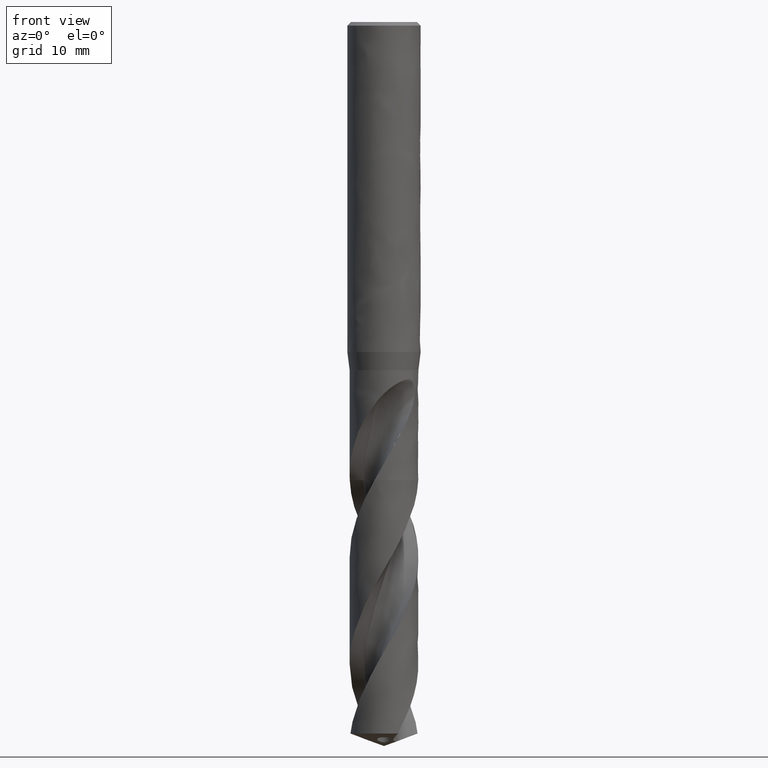
[diagram: clean part render]
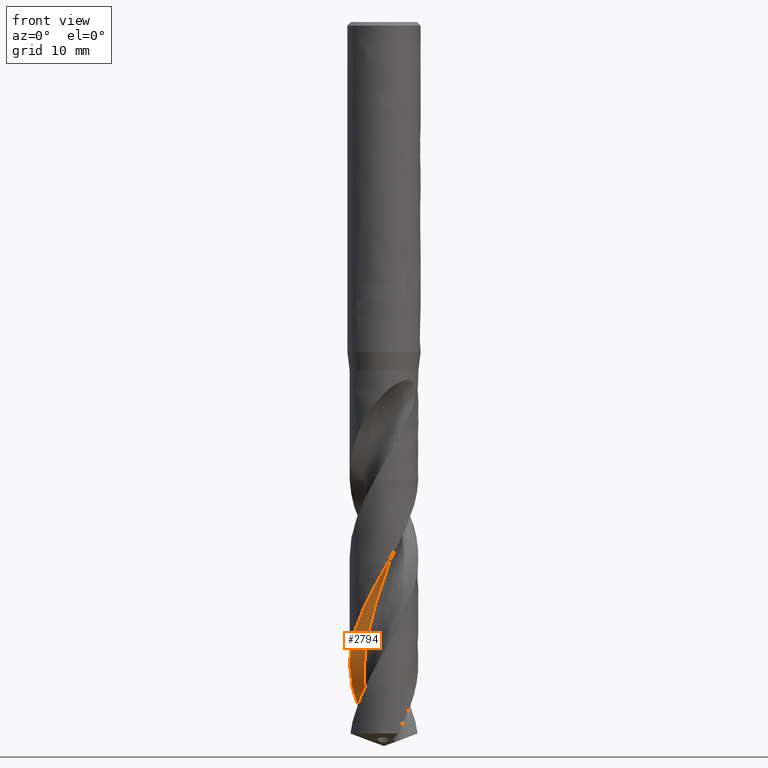
[diagram: same view with one face highlighted and labeled with its STEP entity id]
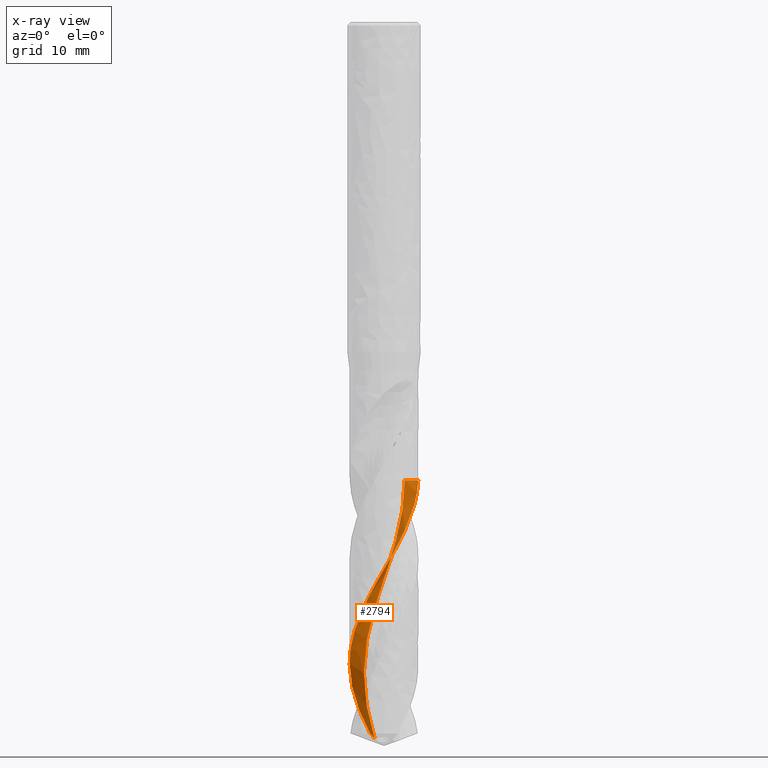
[diagram: x-ray of the same camera — body ghosted, the highlighted face saturated]
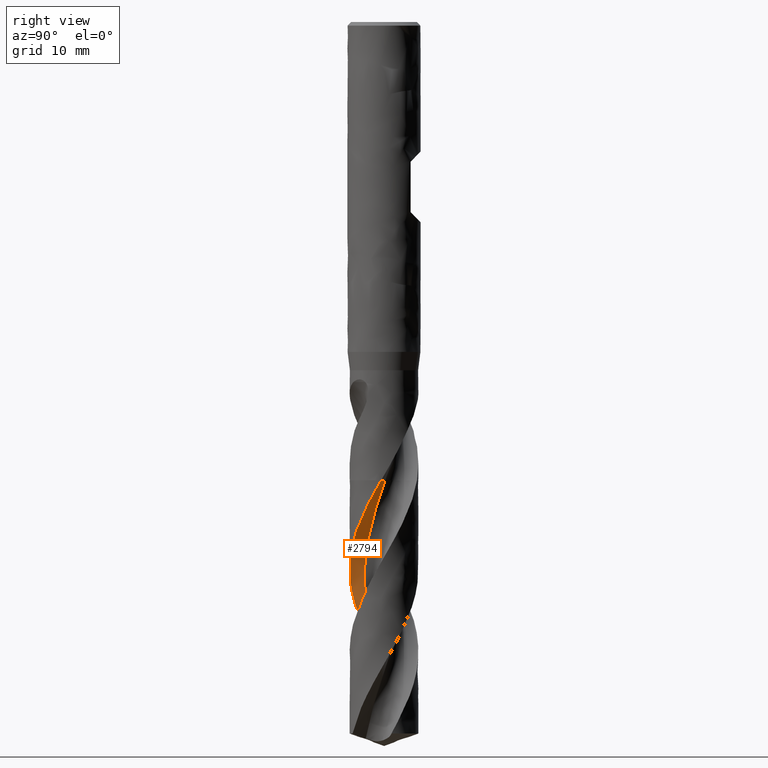
[diagram: same view with one face highlighted and labeled with its STEP entity id]
A machine part, front view. The second image highlights one B-rep face of the part: STEP entity #2794.
The next image is the same camera in x-ray: the body ghosted, the highlighted face saturated — about 0% of this face is hidden behind the body in this view.
A second angle (right view) of the same face is appended — the face is thin or edge-on in the first view.
In plain terms, the highlighted face is a freeform B-spline surface patch.
Its self-contained STEP definition (entity closure, byte-faithful):
#1783 = VERTEX_POINT('', #1784);
#1784 = CARTESIAN_POINT('', (2.24340713383503, 0.132062946207689, -50.));
#1952 = VERTEX_POINT('', #1953);
#1953 = CARTESIAN_POINT('', (3.73763323144449, -0.304298910944184, -50.));
#1960 = EDGE_CURVE('', #1952, #1783, #1961, .T.);
#1961 = LINE('', #1962, #1963);
#1962 = CARTESIAN_POINT('', (3.73763323144449, -0.304298910944184, -50.));
#1963 = VECTOR('', #1964, 1.55663846192821);
#1964 = DIRECTION('', (-1.49422609760946, 0.436361857151871, 7.105427357601E-15));
#2353 = EDGE_CURVE('', #2354, #1783, #2356, .T.);
#2354 = VERTEX_POINT('', #2355);
#2355 = CARTESIAN_POINT('', (-1.02703114820642, 1.99648029026866, -78.1828299584324));
#2356 = (
   BOUNDED_CURVE ()
   B_SPLINE_CURVE (3, (#2357, #2358, #2359, #2360, #2361, #2362, #2363, #2364, #2365, #2366, #2367, #2368, #2369, #2370, #2371, #2372, #2373, #2374, #2375, #2376, #2377, #2378, #2379, #2380, #2381, #2382, #2383, #2384, #2385, #2386, #2387, #2388, #2389, #2390, #2391, #2392, #2393, #2394, #2395, #2396, #2397, #2398, #2399, #2400, #2401), .UNSPECIFIED., .F., .U.)
   B_SPLINE_CURVE_WITH_KNOTS ((4, 1, 1, 1, 1, 1, 1, 1, 1, 1, 1, 1, 1, 1, 1, 1, 1, 1, 1, 1, 1, 1, 1, 1, 1, 1, 1, 1, 1, 1, 1, 1, 1, 1, 1, 1, 1, 1, 1, 1, 1, 1, 4), (0.867170041567587, 1.38103448275862, 2.07155172413793, 2.76206896551724, 3.45258620689655, 4.14310344827586, 4.83362068965517, 5.52413793103448, 6.21465517241379, 6.9051724137931, 7.59568965517241, 8.28620689655172, 8.97672413793103, 9.66724137931034, 10.3577586206897, 11.048275862069, 11.7387931034483, 12.4293103448276, 13.1198275862069, 13.8103448275862, 14.5008620689655, 15.1913793103448, 15.8818965517241, 16.5724137931034, 17.2629310344828, 17.9534482758621, 18.6439655172414, 19.3344827586207, 20.025, 20.7155172413793, 21.4060344827586, 22.0965517241379, 22.7870689655172, 23.4775862068965, 24.1681034482759, 24.8586206896552, 25.5491379310345, 26.2396551724138, 26.9301724137931, 27.6206896551724, 28.3112068965517, 29.001724137931, 29.05), .UNSPECIFIED.)
   CURVE ()
   GEOMETRIC_REPRESENTATION_ITEM ()
   RATIONAL_B_SPLINE_CURVE ((1., 1., 1., 1., 1., 1., 1., 1., 1., 1., 1., 1., 1., 1., 1., 1., 1., 1., 1., 1., 1., 1., 1., 1., 1., 1., 1., 1., 1., 1., 1., 1., 1., 1., 1., 1., 1., 1., 1., 1., 1., 1., 1., 1., 1.))
   REPRESENTATION_ITEM ('')
);
#2357 = CARTESIAN_POINT('', (-1.02703114820642, 1.99648029026866, -78.1828299584324));
#2358 = CARTESIAN_POINT('', (-1.07848965040616, 1.96836087702373, -78.0115418113687));
#2359 = CARTESIAN_POINT('', (-1.1964286796969, 1.89785509170282, -77.610081250512));
#2360 = CARTESIAN_POINT('', (-1.37087113338733, 1.77075544983249, -76.9784482758621));
#2361 = CARTESIAN_POINT('', (-1.54568438640881, 1.61313507655464, -76.2879310344828));
#2362 = CARTESIAN_POINT('', (-1.70281453030014, 1.43861220968175, -75.5974137931035));
#2363 = CARTESIAN_POINT('', (-1.84066590102839, 1.24912758305519, -74.9068965517241));
#2364 = CARTESIAN_POINT('', (-1.95785043504788, 1.04676743439513, -74.2163793103448));
#2365 = CARTESIAN_POINT('', (-2.05320157460334, 0.833743044453602, -73.5258620689655));
#2366 = CARTESIAN_POINT('', (-2.12578479486478, 0.612367357628328, -72.8353448275862));
#2367 = CARTESIAN_POINT('', (-2.17490609682528, 0.385031210439933, -72.1448275862069));
#2368 = CARTESIAN_POINT('', (-2.20011801666078, 0.154178782817019, -71.4543103448276));
#2369 = CARTESIAN_POINT('', (-2.20122321086692, -0.0777173268882573, -70.7637931034483));
#2370 = CARTESIAN_POINT('', (-2.17827556858865, -0.30818120958417, -70.073275862069));
#2371 = CARTESIAN_POINT('', (-2.13157885988887, -0.534758686042927, -69.3827586206897));
#2372 = CARTESIAN_POINT('', (-2.06168294157, -0.755042047629636, -68.6922413793103));
#2373 = CARTESIAN_POINT('', (-1.96937756653384, -0.966694264268052, -68.001724137931));
#2374 = CARTESIAN_POINT('', (-1.85568386333134, -1.16747243370944, -67.3112068965517));
#2375 = CARTESIAN_POINT('', (-1.72184357338328, -1.35525025363402, -66.6206896551724));
#2376 = CARTESIAN_POINT('', (-1.56930615311135, -1.52803930774748, -65.9301724137931));
#2377 = CARTESIAN_POINT('', (-1.39971386704826, -1.68400896828713, -65.2396551724138));
#2378 = CARTESIAN_POINT('', (-1.21488501567918, -1.82150473025099, -64.5491379310345));
#2379 = CARTESIAN_POINT('', (-1.01679545819432, -1.9390648070692, -63.8586206896552));
#2380 = CARTESIAN_POINT('', (-0.807558605377878, -2.0354348332433, -63.1681034482759));
#2381 = CARTESIAN_POINT('', (-0.589404071410881, -2.10958053655732, -62.4775862068965));
#2382 = CARTESIAN_POINT('', (-0.364655185323537, -2.16069826068509, -61.7870689655172));
#2383 = CARTESIAN_POINT('', (-0.135705573105611, -2.18822323823809, -61.0965517241379));
#2384 = CARTESIAN_POINT('', (0.0950049700089198, -2.19183553437298, -60.4060344827586));
#2385 = CARTESIAN_POINT('', (0.325015090889185, -2.17146360185487, -59.7155172413793));
#2386 = CARTESIAN_POINT('', (0.551866742513842, -2.12728540978932, -59.025));
#2387 = CARTESIAN_POINT('', (0.773130066781506, -2.05972712995042, -58.3344827586207));
#2388 = CARTESIAN_POINT('', (0.98642806148484, -1.9694593865047, -57.6439655172414));
#2389 = CARTESIAN_POINT('', (1.18946079750736, -1.85739109706746, -56.9534482758621));
#2390 = CARTESIAN_POINT('', (1.38002895684431, -1.72466095423341, -56.2629310344828));
#2391 = CARTESIAN_POINT('', (1.55605646164173, -1.57262662065432, -55.5724137931035));
#2392 = CARTESIAN_POINT('', (1.71561199185178, -1.40285172292937, -54.8818965517241));
#2393 = CARTESIAN_POINT('', (1.85692912192952, -1.21709078320042, -54.1913793103448));
#2394 = CARTESIAN_POINT('', (1.97842510182255, -1.01727212315642, -53.5008620689655));
#2395 = CARTESIAN_POINT('', (2.07871726010882, -0.805479255957283, -52.8103448275862));
#2396 = CARTESIAN_POINT('', (2.15663997743982, -0.583929574409092, -52.1198275862069));
#2397 = CARTESIAN_POINT('', (2.21125043051747, -0.354955596692251, -51.4293103448276));
#2398 = CARTESIAN_POINT('', (2.24186642390268, -0.12097002357289, -50.7387931034483));
#2399 = CARTESIAN_POINT('', (2.24608048135879, 0.0421973907332666, -50.2623563218391));
#2400 = CARTESIAN_POINT('', (2.24358986292296, 0.12655102816396, -50.016091954023));
#2401 = CARTESIAN_POINT('', (2.24340713383503, 0.132062946207689, -50.));
#2794 = ADVANCED_FACE('', (#2795), #2992, .T.);
#2795 = FACE_OUTER_BOUND('', #2796, .T.);
#2796 = EDGE_LOOP('', (#2797, #2798, #2915, #2963, #2991));
#2797 = ORIENTED_EDGE('', *, *, #1960, .F.);
#2798 = ORIENTED_EDGE('', *, *, #2799, .T.);
#2799 = EDGE_CURVE('', #1952, #2800, #2802, .T.);
#2800 = VERTEX_POINT('', #2801);
#2801 = CARTESIAN_POINT('', (-3.75, 4.51867119545947E-15, -70.0455008514381));
#2802 = B_SPLINE_CURVE_WITH_KNOTS('', 3, (#2803, #2804, #2805, #2806, #2807, #2808, #2809, #2810, #2811, #2812, #2813, #2814, #2815, #2816, #2817, #2818, #2819, #2820, #2821, #2822, #2823, #2824, #2825, #2826, #2827, #2828, #2829, #2830, #2831, #2832, #2833, #2834, #2835, #2836, #2837, #2838, #2839, #2840, #2841, #2842, #2843, #2844, #2845, #2846, #2847, #2848, #2849, #2850, #2851, #2852, #2853, #2854, #2855, #2856, #2857, #2858, #2859, #2860, #2861, #2862, #2863, #2864, #2865, #2866, #2867, #2868, #2869, #2870, #2871, #2872, #2873, #2874, #2875, #2876, #2877, #2878, #2879, #2880, #2881, #2882, #2883, #2884, #2885, #2886, #2887, #2888, #2889, #2890, #2891, #2892, #2893, #2894, #2895, #2896, #2897, #2898, #2899, #2900, #2901, #2902, #2903, #2904, #2905, #2906, #2907, #2908, #2909, #2910, #2911, #2912, #2913, #2914), .UNSPECIFIED., .F., .U., (4, 3, 3, 3, 3, 3, 3, 3, 3, 3, 3, 3, 3, 3, 3, 3, 3, 3, 3, 3, 3, 3, 3, 3, 3, 3, 3, 3, 3, 3, 3, 3, 3, 3, 3, 3, 3, 4), (10.4026737499228, 10.54200901875, 11.2082670087831, 11.8743467610676, 12.5402460620507, 13.2059728916227, 13.8715309631774, 14.5369235824044, 15.2021534079656, 15.8672221500434, 16.5321311905167, 17.1968813263478, 17.8614726983511, 18.5259047567632, 19.1901762311277, 19.8542851146329, 20.5182288916063, 21.1820044199246, 21.6247385916339, 21.7123389487168, 22.378781996363, 23.0450360129661, 23.7111079058032, 24.3770036388237, 25.0427282249821, 25.7082857951378, 26.3736796484362, 27.0389122951097, 27.703985638427, 28.3689010479336, 29.033659267506, 29.6982604051175, 30.3627039124498, 31.0269885586209, 31.6911124866277, 32.3550732651226, 33.0188677695314, 33.4991235694789), .UNSPECIFIED.);
#2803 = CARTESIAN_POINT('', (3.73763323144449, -0.304298910944184, -50.));
#2804 = CARTESIAN_POINT('', (3.73575528108961, -0.327365341355166, -50.0402685912264));
#2805 = CARTESIAN_POINT('', (3.73366358150514, -0.350416552160913, -50.0805429648196));
#2806 = CARTESIAN_POINT('', (3.73135910630578, -0.373442391528522, -50.1208126365872));
#2807 = CARTESIAN_POINT('', (3.72033982147336, -0.483544805547674, -50.3133697026982));
#2808 = CARTESIAN_POINT('', (3.70444261289035, -0.593163053615004, -50.5059866000077));
#2809 = CARTESIAN_POINT('', (3.6837389297758, -0.701831530536383, -50.6985605067277));
#2810 = CARTESIAN_POINT('', (3.66304078532334, -0.810470936399759, -50.8910828959573));
#2811 = CARTESIAN_POINT('', (3.6375275808418, -0.918216381932822, -51.0836541253384));
#2812 = CARTESIAN_POINT('', (3.60731411037971, -1.02459011758643, -51.2761835480523));
#2813 = CARTESIAN_POINT('', (3.57710882521382, -1.13093503495069, -51.4686608115694));
#2814 = CARTESIAN_POINT('', (3.54219163463873, -1.23595945731943, -51.6611901778647));
#2815 = CARTESIAN_POINT('', (3.50271830636421, -1.33920292198798, -51.853678465899));
#2816 = CARTESIAN_POINT('', (3.46325520188873, -1.44241964605775, -52.0461168984572));
#2817 = CARTESIAN_POINT('', (3.41921906104629, -1.54390681396906, -52.2386070788639));
#2818 = CARTESIAN_POINT('', (3.37080479046763, -1.64322094210138, -52.4310553613339));
#2819 = CARTESIAN_POINT('', (3.322402792635, -1.74250989465925, -52.6234548592438));
#2820 = CARTESIAN_POINT('', (3.26960188381971, -1.83967407218978, -52.8159060015891));
#2821 = CARTESIAN_POINT('', (3.21263536963595, -1.9342890119535, -53.0083155796393));
#2822 = CARTESIAN_POINT('', (3.15568301686467, -2.02888043121212, -53.200677326232));
#2823 = CARTESIAN_POINT('', (3.09453999830282, -2.12096897897463, -53.3930907892172));
#2824 = CARTESIAN_POINT('', (3.02947561961311, -2.2101532684793, -53.5854626628553));
#2825 = CARTESIAN_POINT('', (2.96442715944791, -2.29931573832894, -53.7777874711644));
#2826 = CARTESIAN_POINT('', (2.89542813091778, -2.38561801026517, -53.9701637086866));
#2827 = CARTESIAN_POINT('', (2.82278230844189, -2.46868386780233, -54.1624986453963));
#2828 = CARTESIAN_POINT('', (2.75015407694238, -2.55172961118168, -54.3547870087558));
#2829 = CARTESIAN_POINT('', (2.67384566769372, -2.63158068911656, -54.5471265804238));
#2830 = CARTESIAN_POINT('', (2.59419274915944, -2.70788921121389, -54.7394250261065));
#2831 = CARTESIAN_POINT('', (2.51455895751851, -2.78417940950098, -54.9316772955544));
#2832 = CARTESIAN_POINT('', (2.43154366267858, -2.85696575082384, -55.1239807341836));
#2833 = CARTESIAN_POINT('', (2.34551128153509, -2.92593178802781, -55.3162430168623));
#2834 = CARTESIAN_POINT('', (2.25949946101554, -2.99488134324281, -55.5084593513476));
#2835 = CARTESIAN_POINT('', (2.17043070215697, -3.06004555468916, -55.7007269591394));
#2836 = CARTESIAN_POINT('', (2.07869492229494, -3.12114200574489, -55.8929532945826));
#2837 = CARTESIAN_POINT('', (1.9869810519035, -3.18222386499249, -56.0851337201609));
#2838 = CARTESIAN_POINT('', (1.89255791713229, -3.23926891539251, -56.2773655067236));
#2839 = CARTESIAN_POINT('', (1.7958378737795, -3.29203073058243, -56.4695559528922));
#2840 = CARTESIAN_POINT('', (1.69914101582769, -3.34477989788884, -56.6617003278185));
#2841 = CARTESIAN_POINT('', (1.60010274220041, -3.39327277181634, -56.8538960263071));
#2842 = CARTESIAN_POINT('', (1.49915496797376, -3.43730044977153, -57.0460504648653));
#2843 = CARTESIAN_POINT('', (1.39823159142926, -3.48131748684533, -57.2381584623509));
#2844 = CARTESIAN_POINT('', (1.29535178356889, -3.52089234400429, -57.4303175572253));
#2845 = CARTESIAN_POINT('', (1.19096423734934, -3.55585491624094, -57.6224356691269));
#2846 = CARTESIAN_POINT('', (1.08660224161854, -3.59080893083982, -57.8145067571083));
#2847 = CARTESIAN_POINT('', (0.980683080975579, -3.62116970648932, -58.0066286525131));
#2848 = CARTESIAN_POINT('', (0.873668753242937, -3.64680722133854, -58.1987097906296));
#2849 = CARTESIAN_POINT('', (0.766681030732635, -3.67243836235169, -58.3907431747537));
#2850 = CARTESIAN_POINT('', (0.658547047001433, -3.69336097392966, -58.5828273073208));
#2851 = CARTESIAN_POINT('', (0.549737711819199, -3.70948627820671, -58.7748706667866));
#2852 = CARTESIAN_POINT('', (0.440955949791416, -3.72560749620289, -58.9668653609315));
#2853 = CARTESIAN_POINT('', (0.331447176576837, -3.73694157197279, -59.1589109214264));
#2854 = CARTESIAN_POINT('', (0.221687014920835, -3.74344158060677, -59.3509155692878));
#2855 = CARTESIAN_POINT('', (0.148477666000485, -3.74777704616086, -59.4789814817968));
#2856 = CARTESIAN_POINT('', (0.0751374177559403, -3.74996421647877, -59.6070633441996));
#2857 = CARTESIAN_POINT('', (0.00180764775228118, -3.74999956432125, -59.735133741089));
#2858 = CARTESIAN_POINT('', (-0.0127015418418505, -3.75000655832312, -59.76047403153));
#2859 = CARTESIAN_POINT('', (-0.0272106881284662, -3.7499293442157, -59.7858145099063));
#2860 = CARTESIAN_POINT('', (-0.0417186895357171, -3.7497679329451, -59.8111549675343));
#2861 = CARTESIAN_POINT('', (-0.152092174245925, -3.7485399537144, -60.0039392480183));
#2862 = CARTESIAN_POINT('', (-0.2624288598312, -3.74243383127344, -60.1967750032054));
#2863 = CARTESIAN_POINT('', (-0.372246305018401, -3.73147861958256, -60.3895694661216));
#2864 = CARTESIAN_POINT('', (-0.48203260139809, -3.72052651524661, -60.5823092444873));
#2865 = CARTESIAN_POINT('', (-0.59135288055001, -3.70472277616661, -60.7751001685432));
#2866 = CARTESIAN_POINT('', (-0.699728989996756, -3.68413888725152, -60.9678500687895));
#2867 = CARTESIAN_POINT('', (-0.808075474308497, -3.66356062504227, -61.1605472799159));
#2868 = CARTESIAN_POINT('', (-0.915530872859945, -3.63819485159457, -61.3532955453704));
#2869 = CARTESIAN_POINT('', (-1.02162587097106, -3.60815473334542, -61.5460027932506));
#2870 = CARTESIAN_POINT('', (-1.12769280953543, -3.57812255997696, -61.7386590747505));
#2871 = CARTESIAN_POINT('', (-1.23245106724591, -3.54340410305838, -61.931366531347));
#2872 = CARTESIAN_POINT('', (-1.33544437932569, -3.5041530088921, -62.1240328204808));
#2873 = CARTESIAN_POINT('', (-1.43841122032103, -3.46491200294423, -62.316649591005));
#2874 = CARTESIAN_POINT('', (-1.53966278744549, -3.42112213552003, -62.5093176838787));
#2875 = CARTESIAN_POINT('', (-1.63875933388278, -3.3729761110349, -62.7019444784583));
#2876 = CARTESIAN_POINT('', (-1.73783101912461, -3.3248421653534, -62.8945229471117));
#2877 = CARTESIAN_POINT('', (-1.83479518720684, -3.2723317093178, -63.0871527629441));
#2878 = CARTESIAN_POINT('', (-1.92923148802499, -3.21567502487625, -63.2797413070693));
#2879 = CARTESIAN_POINT('', (-2.0236445589753, -3.15903227710186, -63.4722824773946));
#2880 = CARTESIAN_POINT('', (-2.11557535248145, -3.09821872172538, -63.6648747854452));
#2881 = CARTESIAN_POINT('', (-2.2046253772881, -3.03350077399319, -63.8574261070069));
#2882 = CARTESIAN_POINT('', (-2.29365382772361, -2.96879850563926, -64.0499307786808));
#2883 = CARTESIAN_POINT('', (-2.37984541789142, -2.90016281283591, -64.2424862210169));
#2884 = CARTESIAN_POINT('', (-2.46282630212509, -2.82789437666275, -64.4350010077691));
#2885 = CARTESIAN_POINT('', (-2.54578731491466, -2.75564324662225, -64.627469692978));
#2886 = CARTESIAN_POINT('', (-2.62557922292086, -2.67972622601371, -64.8199889970816));
#2887 = CARTESIAN_POINT('', (-2.70185637332303, -2.60047536768447, -65.0124676920113));
#2888 = CARTESIAN_POINT('', (-2.77811541032289, -2.52124332891881, -65.20490067936));
#2889 = CARTESIAN_POINT('', (-2.85089792274119, -2.4386410876081, -65.3973844118256));
#2890 = CARTESIAN_POINT('', (-2.91988963326961, -2.35302879912776, -65.5898273676607));
#2891 = CARTESIAN_POINT('', (-2.98886503374973, -2.26743674989862, -65.7822248288432));
#2892 = CARTESIAN_POINT('', (-3.0540839450039, -2.17879577311112, -65.9746732240814));
#2893 = CARTESIAN_POINT('', (-3.11526579263596, -2.08749108770126, -66.1670806661792));
#2894 = CARTESIAN_POINT('', (-3.17643318303485, -1.99620797753273, -66.3594426425162));
#2895 = CARTESIAN_POINT('', (-3.2335938588112, -1.90222000587414, -66.5518556260597));
#2896 = CARTESIAN_POINT('', (-3.28650265954252, -1.80593473548185, -66.74422763884));
#2897 = CARTESIAN_POINT('', (-3.33939891135004, -1.70967230205629, -66.9365540247739));
#2898 = CARTESIAN_POINT('', (-3.38806989075053, -1.61106889686855, -67.1289312339221));
#2899 = CARTESIAN_POINT('', (-3.43230717248603, -1.51055204269861, -67.3212677442447));
#2900 = CARTESIAN_POINT('', (-3.47653387757225, -1.41005922100697, -67.5135582690155));
#2901 = CARTESIAN_POINT('', (-3.5163499117223, -1.30760629297016, -67.7058992146479));
#2902 = CARTESIAN_POINT('', (-3.55158494599826, -1.20363797354459, -67.8981998529369));
#2903 = CARTESIAN_POINT('', (-3.58681145544971, -1.09969480839219, -68.0904539656803));
#2904 = CARTESIAN_POINT('', (-3.61747610730877, -0.994187035083464, -68.282758282924));
#2905 = CARTESIAN_POINT('', (-3.64344827717474, -0.887572335954901, -68.4750223844587));
#2906 = CARTESIAN_POINT('', (-3.6694140666851, -0.780983827926193, -68.6672392541547));
#2907 = CARTESIAN_POINT('', (-3.6907021085317, -0.673238040295737, -68.8595064525044));
#2908 = CARTESIAN_POINT('', (-3.70722265215438, -0.564801033421114, -69.0517332571984));
#2909 = CARTESIAN_POINT('', (-3.72373905857741, -0.456391182162912, -69.2439119230003));
#2910 = CARTESIAN_POINT('', (-3.73549813168912, -0.347239649146986, -69.4361411398696));
#2911 = CARTESIAN_POINT('', (-3.7424514794207, -0.237816997252199, -69.6283297486059));
#2912 = CARTESIAN_POINT('', (-3.74748223149076, -0.158649630139212, -69.7673783448453));
#2913 = CARTESIAN_POINT('', (-3.75, -0.0793176681324522, -69.9064469046399));
#2914 = CARTESIAN_POINT('', (-3.75, 4.4766056334747E-15, -70.0455008514382));
#2915 = ORIENTED_EDGE('', *, *, #2916, .F.);
#2916 = EDGE_CURVE('', #2917, #2800, #2919, .T.);
#2917 = VERTEX_POINT('', #2918);
#2918 = CARTESIAN_POINT('', (-1.5221107578736, 3.42719693638482, -77.6351116215018));
#2919 = B_SPLINE_CURVE_WITH_KNOTS('', 3, (#2920, #2921, #2922, #2923, #2924, #2925, #2926, #2927, #2928, #2929, #2930, #2931, #2932, #2933, #2934, #2935, #2936, #2937, #2938, #2939, #2940, #2941, #2942, #2943, #2944, #2945, #2946, #2947, #2948, #2949, #2950, #2951, #2952, #2953, #2954, #2955, #2956, #2957, #2958, #2959, #2960, #2961, #2962), .UNSPECIFIED., .F., .U., (4, 3, 3, 3, 3, 3, 3, 3, 3, 3, 3, 3, 3, 3, 4), (0., 0.66561593831297, 1.331069818709, 1.99636416962053, 2.66150093696938, 3.32648136471202, 3.99130600834453, 4.65597470329282, 5.32048666550956, 5.98484076220309, 6.64903524772549, 7.31306767066533, 7.97693481026115, 8.64063260041699, 8.73383498124135), .UNSPECIFIED.);
#2920 = CARTESIAN_POINT('', (-1.5221107578736, 3.42719693638482, -77.6351116215017));
#2921 = CARTESIAN_POINT('', (-1.62236692302693, 3.38267046464841, -77.4422560539828));
#2922 = CARTESIAN_POINT('', (-1.72069883412994, 3.33372664299403, -77.2493600066725));
#2923 = CARTESIAN_POINT('', (-1.81668139565207, 3.28057444766792, -77.0565145574775));
#2924 = CARTESIAN_POINT('', (-1.91264058824163, 3.2274351933391, -76.8637160604811));
#2925 = CARTESIAN_POINT('', (-2.00629581587175, 3.17006513541412, -76.6708769067175));
#2926 = CARTESIAN_POINT('', (-2.09724262560069, 3.10870927707362, -76.4780885671205));
#2927 = CARTESIAN_POINT('', (-2.18816763262007, 3.04736812759385, -76.2853464447376));
#2928 = CARTESIAN_POINT('', (-2.2764270200649, 2.98201508665881, -76.0925636074895));
#2929 = CARTESIAN_POINT('', (-2.36163944318695, 2.91292964906186, -75.8998315019145));
#2930 = CARTESIAN_POINT('', (-2.44683168264564, 2.84386057524339, -75.7071450474289));
#2931 = CARTESIAN_POINT('', (-2.52901775202632, 2.77102892566939, -75.5144181584115));
#2932 = CARTESIAN_POINT('', (-2.60784156161221, 2.69474718471474, -75.3217416746268));
#2933 = CARTESIAN_POINT('', (-2.68664684375539, 2.61848337369258, -75.1291104792204));
#2934 = CARTESIAN_POINT('', (-2.76212866593491, 2.53873502392703, -74.9364391814636));
#2935 = CARTESIAN_POINT('', (-2.83395898228344, 2.45584537109628, -74.7438179730886));
#2936 = CARTESIAN_POINT('', (-2.90577247103608, 2.37297513671796, -74.5512418898365));
#2937 = CARTESIAN_POINT('', (-2.97397062898739, 2.28692527945759, -74.3586258586149));
#2938 = CARTESIAN_POINT('', (-3.03825656558671, 2.19806665996946, -74.1660598573279));
#2939 = CARTESIAN_POINT('', (-3.10252742255966, 2.10922888415029, -73.9735390264701));
#2940 = CARTESIAN_POINT('', (-3.16291856480814, 2.01754131901503, -73.7809779923776));
#2941 = CARTESIAN_POINT('', (-3.21916738439107, 1.9233983860014, -73.5884673634715));
#2942 = CARTESIAN_POINT('', (-3.27540294017625, 1.82927765243714, -73.3960021296878));
#2943 = CARTESIAN_POINT('', (-3.32752425428568, 1.73265904736925, -73.2034962752513));
#2944 = CARTESIAN_POINT('', (-3.37530496920152, 1.63395727143753, -73.0110411398388));
#2945 = CARTESIAN_POINT('', (-3.42307433303868, 1.53527894370297, -72.8186317252446));
#2946 = CARTESIAN_POINT('', (-3.46652703645686, 1.43447324000703, -72.6261816290163));
#2947 = CARTESIAN_POINT('', (-3.50547400442724, 1.33197297430724, -72.4337822097662));
#2948 = CARTESIAN_POINT('', (-3.54441161538274, 1.22949733431163, -72.2414290145054));
#2949 = CARTESIAN_POINT('', (-3.57886362290163, 1.12528058170072, -72.0490353592525));
#2950 = CARTESIAN_POINT('', (-3.60867937070205, 1.01977115053801, -71.8566921057048));
#2951 = CARTESIAN_POINT('', (-3.63848784349913, 0.914287463538013, -71.6643957836584));
#2952 = CARTESIAN_POINT('', (-3.66367633767484, 0.807461994098565, -71.4720593153241));
#2953 = CARTESIAN_POINT('', (-3.68413383541045, 0.699755587890689, -71.2797729414067));
#2954 = CARTESIAN_POINT('', (-3.70458624110007, 0.592075990727634, -71.0875344292107));
#2955 = CARTESIAN_POINT('', (-3.72031978559446, 0.483464315157626, -70.8952559469514));
#2956 = CARTESIAN_POINT('', (-3.7312641760821, 0.374389701096421, -70.7030274605107));
#2957 = CARTESIAN_POINT('', (-3.7422057747063, 0.265342911465295, -70.5108480106688));
#2958 = CARTESIAN_POINT('', (-3.74836590894739, 0.155781364131959, -70.3186284032261));
#2959 = CARTESIAN_POINT('', (-3.74971567389717, 0.0461775370868198, -70.1264591000518));
#2960 = CARTESIAN_POINT('', (-3.74990521996578, 0.0307859872284578, -70.0994729674432));
#2961 = CARTESIAN_POINT('', (-3.75, 0.0153930374441927, -70.07248680123));
#2962 = CARTESIAN_POINT('', (-3.75, 4.4766056334747E-15, -70.0455008514382));
#2963 = ORIENTED_EDGE('', *, *, #2964, .F.);
#2964 = EDGE_CURVE('', #2354, #2917, #2965, .T.);
#2965 = B_SPLINE_CURVE_WITH_KNOTS('', 3, (#2966, #2967, #2968, #2969, #2970, #2971, #2972, #2973, #2974, #2975, #2976, #2977, #2978, #2979, #2980, #2981, #2982, #2983, #2984, #2985, #2986, #2987, #2988, #2989, #2990), .UNSPECIFIED., .F., .U., (4, 3, 3, 3, 3, 3, 3, 3, 4), (0., 0.19724876645943, 0.39444789091921, 0.591614123177242, 0.788759289425029, 0.985891841530044, 1.18301788183139, 1.38014185151804, 1.61176486210337), .UNSPECIFIED.);
#2966 = CARTESIAN_POINT('', (-1.02703114820642, 1.99648029026866, -78.1828299584324));
#2967 = CARTESIAN_POINT('', (-1.04210190980092, 2.0565920905407, -78.160865167448));
#2968 = CARTESIAN_POINT('', (-1.05781432421713, 2.11651289850354, -78.138807705573));
#2969 = CARTESIAN_POINT('', (-1.07416261632881, 2.1762310413396, -78.1166833933528));
#2970 = CARTESIAN_POINT('', (-1.09050679403246, 2.23593415478876, -78.0945646492034));
#2971 = CARTESIAN_POINT('', (-1.10748822111649, 2.29544087549343, -78.072376645898));
#2972 = CARTESIAN_POINT('', (-1.1251003719443, 2.3547379933455, -78.0501393641231));
#2973 = CARTESIAN_POINT('', (-1.14270958512003, 2.41402522062241, -78.0279057914578));
#2974 = CARTESIAN_POINT('', (-1.16095111549178, 2.47310897923236, -78.0056205790142));
#2975 = CARTESIAN_POINT('', (-1.17981779121098, 2.53197505123665, -77.9832996118666));
#2976 = CARTESIAN_POINT('', (-1.19868245114086, 2.59083483375991, -77.9609810295782));
#2977 = CARTESIAN_POINT('', (-1.2181740374827, 2.64948294293263, -77.9386243676254));
#2978 = CARTESIAN_POINT('', (-1.23828480275797, 2.70790452202379, -77.9162425731295));
#2979 = CARTESIAN_POINT('', (-1.25839428126537, 2.76632236306672, -77.8938622107111));
#2980 = CARTESIAN_POINT('', (-1.27912488288762, 2.82451957583776, -77.871454420546));
#2981 = CARTESIAN_POINT('', (-1.30046833566857, 2.88248092664695, -77.8490299977954));
#2982 = CARTESIAN_POINT('', (-1.32181108341946, 2.94044036284117, -77.8266063157821));
#2983 = CARTESIAN_POINT('', (-1.34376877148187, 2.99816973256448, -77.8041637319186));
#2984 = CARTESIAN_POINT('', (-1.36633264308113, 3.05565361437828, -77.7817114342497));
#2985 = CARTESIAN_POINT('', (-1.38889627766916, 3.11313689238059, -77.75925937242));
#2986 = CARTESIAN_POINT('', (-1.41206831600415, 3.17038037423298, -77.7367953513351));
#2987 = CARTESIAN_POINT('', (-1.43583954920593, 3.22736858996183, -77.7143273368206));
#2988 = CARTESIAN_POINT('', (-1.46377103114736, 3.29433042172681, -77.687927152348));
#2989 = CARTESIAN_POINT('', (-1.49253332424182, 3.3609482027573, -77.6615181557208));
#2990 = CARTESIAN_POINT('', (-1.52211075787359, 3.42719693638482, -77.6351116215018));
#2991 = ORIENTED_EDGE('', *, *, #2353, .T.);
#2992 = B_SPLINE_SURFACE_WITH_KNOTS('', 3, 1, ((#2993, #2994), (#2995, #2996), (#2997, #2998), (#2999, #3000), (#3001, #3002), (#3003, #3004), (#3005, #3006), (#3007, #3008), (#3009, #3010), (#3011, #3012), (#3013, #3014), (#3015, #3016), (#3017, #3018), (#3019, #3020), (#3021, #3022), (#3023, #3024), (#3025, #3026), (#3027, #3028), (#3029, #3030), (#3031, #3032), (#3033, #3034), (#3035, #3036), (#3037, #3038), (#3039, #3040), (#3041, #3042), (#3043, #3044), (#3045, #3046), (#3047, #3048), (#3049, #3050), (#3051, #3052), (#3053, #3054), (#3055, #3056), (#3057, #3058), (#3059, #3060), (#3061, #3062), (#3063, #3064), (#3065, #3066), (#3067, #3068), (#3069, #3070), (#3071, #3072), (#3073, #3074), (#3075, #3076), (#3077, #3078), (#3079, #3080), (#3081, #3082)), .UNSPECIFIED., .F., .F., .U., (4, 1, 1, 1, 1, 1, 1, 1, 1, 1, 1, 1, 1, 1, 1, 1, 1, 1, 1, 1, 1, 1, 1, 1, 1, 1, 1, 1, 1, 1, 1, 1, 1, 1, 1, 1, 1, 1, 1, 1, 1, 1, 4), (2, 2), (0.867170041567588, 1.38103448275862, 2.07155172413793, 2.76206896551724, 3.45258620689655, 4.14310344827586, 4.83362068965517, 5.52413793103448, 6.21465517241379, 6.9051724137931, 7.59568965517241, 8.28620689655172, 8.97672413793103, 9.66724137931034, 10.3577586206897, 11.048275862069, 11.7387931034483, 12.4293103448276, 13.1198275862069, 13.8103448275862, 14.5008620689655, 15.1913793103448, 15.8818965517241, 16.5724137931034, 17.2629310344828, 17.9534482758621, 18.6439655172414, 19.3344827586207, 20.025, 20.7155172413793, 21.4060344827586, 22.0965517241379, 22.7870689655172, 23.4775862068965, 24.1681034482759, 24.8586206896552, 25.5491379310345, 26.2396551724138, 26.9301724137931, 27.6206896551724, 28.3112068965517, 29.001724137931, 29.05), (0., 0.190960686343864), .UNSPECIFIED.);
#2993 = CARTESIAN_POINT('', (-1.02703114820642, 1.99648029026866, -78.1828299584324));
#2994 = CARTESIAN_POINT('', (-1.247154775824, 3.6520065102738, -78.1828299584324));
#2995 = CARTESIAN_POINT('', (-1.07848965040616, 1.96836087702373, -78.0115418113687));
#2996 = CARTESIAN_POINT('', (-1.34169604676981, 3.61705892411507, -78.0115418113687));
#2997 = CARTESIAN_POINT('', (-1.1964286796969, 1.89785509170282, -77.6100812505119));
#2998 = CARTESIAN_POINT('', (-1.55989285035199, 3.52665938558636, -77.6100812505119));
#2999 = CARTESIAN_POINT('', (-1.37087113338733, 1.77075544983249, -76.9784482758621));
#3000 = CARTESIAN_POINT('', (-1.88833221505264, 3.35415179679401, -76.9784482758621));
#3001 = CARTESIAN_POINT('', (-1.54568438640881, 1.61313507655464, -76.2879310344828));
#3002 = CARTESIAN_POINT('', (-2.22503609817706, 3.12983481293115, -76.2879310344828));
#3003 = CARTESIAN_POINT('', (-1.70281453030014, 1.43861220968175, -75.5974137931035));
#3004 = CARTESIAN_POINT('', (-2.535896617827, 2.87235126978326, -75.5974137931035));
#3005 = CARTESIAN_POINT('', (-1.84066590102839, 1.24912758305519, -74.9068965517241));
#3006 = CARTESIAN_POINT('', (-2.81771483845661, 2.58460237615476, -74.9068965517241));
#3007 = CARTESIAN_POINT('', (-1.95785043504788, 1.04676743439513, -74.2163793103448));
#3008 = CARTESIAN_POINT('', (-3.06760846633363, 2.26978870377483, -74.2163793103448));
#3009 = CARTESIAN_POINT('', (-2.05320157460334, 0.833743044453602, -73.5258620689655));
#3010 = CARTESIAN_POINT('', (-3.28304061399328, 1.93137887057381, -73.5258620689655));
#3011 = CARTESIAN_POINT('', (-2.12578479486478, 0.612367357628328, -72.8353448275862));
#3012 = CARTESIAN_POINT('', (-3.46184354993137, 1.57307241586769, -72.8353448275862));
#3013 = CARTESIAN_POINT('', (-2.17490609682528, 0.385031210439933, -72.1448275862069));
#3014 = CARTESIAN_POINT('', (-3.60223908705045, 1.1987614998825, -72.1448275862069));
#3015 = CARTESIAN_POINT('', (-2.20011801666078, 0.154178782817019, -71.4543103448276));
#3016 = CARTESIAN_POINT('', (-3.70285494211073, 0.812490660430423, -71.4543103448276));
#3017 = CARTESIAN_POINT('', (-2.20122321086692, -0.0777173268882572, -70.7637931034483));
#3018 = CARTESIAN_POINT('', (-3.76273706677365, 0.418415323364226, -70.7637931034483));
#3019 = CARTESIAN_POINT('', (-2.17827556858865, -0.30818120958417, -70.073275862069));
#3020 = CARTESIAN_POINT('', (-3.7813578192015, 0.0207593838338063, -70.073275862069));
#3021 = CARTESIAN_POINT('', (-2.13157885988887, -0.534758686042927, -69.3827586206897));
#3022 = CARTESIAN_POINT('', (-3.75861992861096, -0.376227714702957, -69.3827586206897));
#3023 = CARTESIAN_POINT('', (-2.06168294157, -0.755042047629636, -68.6922413793103));
#3024 = CARTESIAN_POINT('', (-3.69485623130853, -0.76831400243022, -68.6922413793103));
#3025 = CARTESIAN_POINT('', (-1.96937756653384, -0.966694264268052, -68.001724137931));
#3026 = CARTESIAN_POINT('', (-3.59082519815774, -1.15132769854332, -68.001724137931));
#3027 = CARTESIAN_POINT('', (-1.85568386333134, -1.16747243370944, -67.3112068965517));
#3028 = CARTESIAN_POINT('', (-3.44770231031144, -1.52119921915359, -67.3112068965517));
#3029 = CARTESIAN_POINT('', (-1.72184357338328, -1.35525025363402, -66.6206896551724));
#3030 = CARTESIAN_POINT('', (-3.26706737733045, -1.8740020843269, -66.6206896551724));
#3031 = CARTESIAN_POINT('', (-1.56930615311135, -1.52803930774748, -65.9301724137931));
#3032 = CARTESIAN_POINT('', (-3.05088792782019, -2.20599234229352, -65.9301724137931));
#3033 = CARTESIAN_POINT('', (-1.39971386704826, -1.68400896828713, -65.2396551724138));
#3034 = CARTESIAN_POINT('', (-2.8014988375507, -2.51364614329172, -65.2396551724138));
#3035 = CARTESIAN_POINT('', (-1.21488501567918, -1.82150473025099, -64.5491379310345));
#3036 = CARTESIAN_POINT('', (-2.52157839332434, -2.79369511301986, -64.5491379310345));
#3037 = CARTESIAN_POINT('', (-1.01679545819432, -1.9390648070692, -63.8586206896552));
#3038 = CARTESIAN_POINT('', (-2.21412102239406, -3.0431591960609, -63.8586206896552));
#3039 = CARTESIAN_POINT('', (-0.807558605377878, -2.0354348332433, -63.1681034482759));
#3040 = CARTESIAN_POINT('', (-1.88240694677455, -3.25937666275889, -63.1681034482759));
#3041 = CARTESIAN_POINT('', (-0.589404071410881, -2.10958053655732, -62.4775862068965));
#3042 = CARTESIAN_POINT('', (-1.52996904910675, -3.44003099868109, -62.4775862068965));
#3043 = CARTESIAN_POINT('', (-0.364655185323537, -2.16069826068509, -61.7870689655172));
#3044 = CARTESIAN_POINT('', (-1.16055726162842, -3.58317442379171, -61.7870689655172));
#3045 = CARTESIAN_POINT('', (-0.135705573105611, -2.18822323823809, -61.0965517241379));
#3046 = CARTESIAN_POINT('', (-0.778100812081106, -3.68724781857971, -61.0965517241379));
#3047 = CARTESIAN_POINT('', (0.0950049700089199, -2.19183553437298, -60.4060344827586));
#3048 = CARTESIAN_POINT('', (-0.386668679872464, -3.75109686639245, -60.4060344827586));
#3049 = CARTESIAN_POINT('', (0.325015090889184, -2.17146360185487, -59.7155172413793));
#3050 = CARTESIAN_POINT('', (0.00957136763477078, -3.77398425488948, -59.7155172413793));
#3051 = CARTESIAN_POINT('', (0.551866742513842, -2.12728540978932, -59.025));
#3052 = CARTESIAN_POINT('', (0.406394775376798, -3.7555978145859, -59.025));
#3053 = CARTESIAN_POINT('', (0.773130066781506, -2.05972712995042, -58.3344827586207));
#3054 = CARTESIAN_POINT('', (0.799562843722768, -3.69605450866015, -58.3344827586207));
#3055 = CARTESIAN_POINT('', (0.98642806148484, -1.9694593865047, -57.6439655172414));
#3056 = CARTESIAN_POINT('', (1.18486561401967, -3.59590022519992, -57.6439655172414));
#3057 = CARTESIAN_POINT('', (1.18946079750736, -1.85739109706746, -56.9534482758621));
#3058 = CARTESIAN_POINT('', (1.55816459173133, -3.45610536087993, -56.9534482758621));
#3059 = CARTESIAN_POINT('', (1.38002895684431, -1.72466095423341, -56.2629310344828));
#3060 = CARTESIAN_POINT('', (1.91543490477537, -3.27805622226156, -56.2629310344828));
#3061 = CARTESIAN_POINT('', (1.55605646164173, -1.57262662065432, -55.5724137931035));
#3062 = CARTESIAN_POINT('', (2.25280648798353, -3.06354231149896, -55.5724137931035));
#3063 = CARTESIAN_POINT('', (1.71561199185178, -1.40285172292937, -54.8818965517241));
#3064 = CARTESIAN_POINT('', (2.56660392816319, -2.81473959082479, -54.8818965517241));
#3065 = CARTESIAN_POINT('', (1.85692912192952, -1.21709078320042, -54.1913793103448));
#3066 = CARTESIAN_POINT('', (2.85338447659354, -2.53418989458218, -54.1913793103448));
#3067 = CARTESIAN_POINT('', (1.97842510182255, -1.01727212315642, -53.5008620689655));
#3068 = CARTESIAN_POINT('', (3.10997426321705, -2.22477655413554, -53.5008620689655));
#3069 = CARTESIAN_POINT('', (2.07871726010882, -0.805479255957283, -52.8103448275862));
#3070 = CARTESIAN_POINT('', (3.33350084537369, -1.88969685665042, -52.8103448275862));
#3071 = CARTESIAN_POINT('', (2.15663997743982, -0.583929574409092, -52.1198275862069));
#3072 = CARTESIAN_POINT('', (3.52142740264093, -1.53243004865053, -52.1198275862069));
#3073 = CARTESIAN_POINT('', (2.21125043051747, -0.354955596692251, -51.4293103448276));
#3074 = CARTESIAN_POINT('', (3.67156719566007, -1.15670688007669, -51.4293103448276));
#3075 = CARTESIAN_POINT('', (2.24186642390268, -0.12097002357289, -50.7387931034483));
#3076 = CARTESIAN_POINT('', (3.78215664117076, -0.766459644827592, -50.7387931034483));
#3077 = CARTESIAN_POINT('', (2.24608048135879, 0.0421973907332694, -50.2623563218391));
#3078 = CARTESIAN_POINT('', (3.83013488793414, -0.490038740488972, -50.2623563218391));
#3079 = CARTESIAN_POINT('', (2.24358986292296, 0.126551028163966, -50.016091954023));
#3080 = CARTESIAN_POINT('', (3.84699829056857, -0.345967893400284, -50.016091954023));
#3081 = CARTESIAN_POINT('', (2.24340713383503, 0.132062946207698, -50.));
#3082 = CARTESIAN_POINT('', (3.84806621056809, -0.336548876286284, -50.));